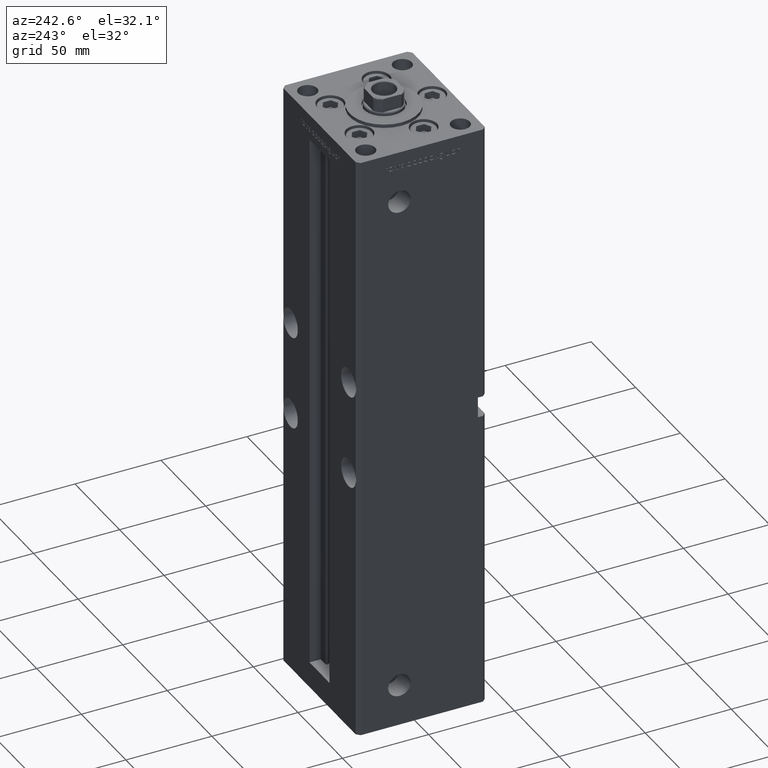
[diagram: clean part render]
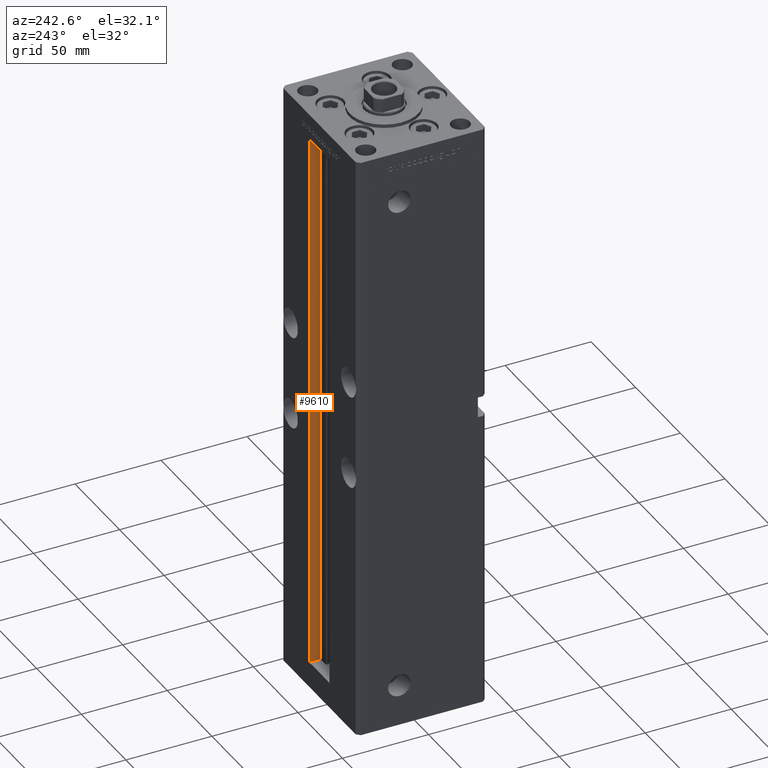
[diagram: same view with one face highlighted and labeled with its STEP entity id]
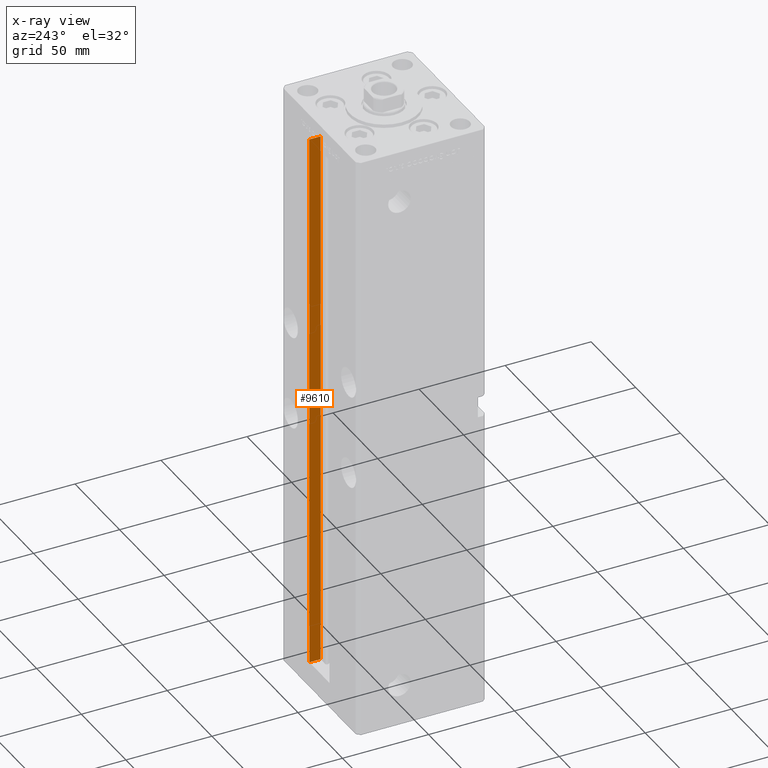
[diagram: x-ray of the same camera — body ghosted, the highlighted face saturated]
A machine part, auxiliary view. The second image highlights one B-rep face of the part: STEP entity #9610.
The next image is the same camera in x-ray: the body ghosted, the highlighted face saturated — about 0% of this face is hidden behind the body in this view.
In plain terms, the highlighted planar face has unit normal (1, 0, 0).
Its self-contained STEP definition (entity closure, byte-faithful):
#4606 = CARTESIAN_POINT ( 'NONE',  ( 11.24999999999999822, 31.00000000000000000, 0.000000000000000000 ) ) ;
#5839 = DIRECTION ( 'NONE',  ( -0.000000000000000000, -1.000000000000000000, 0.000000000000000000 ) ) ;
#9610 = ADVANCED_FACE ( 'NONE', ( #17735 ), #50515, .F. ) ;
#10536 = DIRECTION ( 'NONE',  ( -0.000000000000000000, -0.000000000000000000, 1.000000000000000000 ) ) ;
#11045 = EDGE_CURVE ( 'NONE', #32212, #28484, #15386, .T. ) ;
#14568 = LINE ( 'NONE', #30941, #51292 ) ;
#15386 = LINE ( 'NONE', #16196, #35560 ) ;
#15616 = VECTOR ( 'NONE', #49979, 1000.000000000000000 ) ;
#15828 = CARTESIAN_POINT ( 'NONE',  ( 11.24999999999999112, 37.50000000000000000, 318.5000000000000000 ) ) ;
#16196 = CARTESIAN_POINT ( 'NONE',  ( 11.24999999999999822, 31.00000000000000000, 0.000000000000000000 ) ) ;
#16930 = CARTESIAN_POINT ( 'NONE',  ( 11.24999999999999822, 31.00000000000000000, 0.000000000000000000 ) ) ;
#17735 = FACE_OUTER_BOUND ( 'NONE', #48429, .T. ) ;
#18962 = EDGE_CURVE ( 'NONE', #28484, #37370, #14568, .T. ) ;
#20221 = DIRECTION ( 'NONE',  ( 0.000000000000000000, 1.000000000000000000, 0.000000000000000000 ) ) ;
#26520 = CARTESIAN_POINT ( 'NONE',  ( 11.24999999999999822, 0.000000000000000000, 318.5000000000000000 ) ) ;
#28484 = VERTEX_POINT ( 'NONE', #41344 ) ;
#30941 = CARTESIAN_POINT ( 'NONE',  ( 11.24999999999999822, 37.50000000000000000, 0.000000000000000000 ) ) ;
#31762 = ORIENTED_EDGE ( 'NONE', *, *, #31791, .F. ) ;
#31791 = EDGE_CURVE ( 'NONE', #37370, #42762, #47493, .T. ) ;
#32212 = VERTEX_POINT ( 'NONE', #38023 ) ;
#33318 = DIRECTION ( 'NONE',  ( 0.000000000000000000, 0.000000000000000000, -1.000000000000000000 ) ) ;
#33581 = DIRECTION ( 'NONE',  ( 1.000000000000000000, -0.000000000000000000, 0.000000000000000000 ) ) ;
#35560 = VECTOR ( 'NONE', #20221, 1000.000000000000000 ) ;
#36450 = ORIENTED_EDGE ( 'NONE', *, *, #11045, .F. ) ;
#37370 = VERTEX_POINT ( 'NONE', #15828 ) ;
#38023 = CARTESIAN_POINT ( 'NONE',  ( 11.24999999999999822, 31.00000000000000000, 0.000000000000000000 ) ) ;
#41344 = CARTESIAN_POINT ( 'NONE',  ( 11.24999999999999822, 37.50000000000000000, 0.000000000000000000 ) ) ;
#42762 = VERTEX_POINT ( 'NONE', #43776 ) ;
#43161 = AXIS2_PLACEMENT_3D ( 'NONE', #4606, #33581, #33318 ) ;
#43165 = ORIENTED_EDGE ( 'NONE', *, *, #18962, .F. ) ;
#43776 = CARTESIAN_POINT ( 'NONE',  ( 11.24999999999999822, 31.00000000000000000, 318.5000000000000000 ) ) ;
#46467 = LINE ( 'NONE', #16930, #15616 ) ;
#47493 = LINE ( 'NONE', #26520, #49949 ) ;
#48429 = EDGE_LOOP ( 'NONE', ( #43165, #36450, #50608, #31762 ) ) ;
#49949 = VECTOR ( 'NONE', #5839, 1000.000000000000000 ) ;
#49979 = DIRECTION ( 'NONE',  ( -0.000000000000000000, -0.000000000000000000, 1.000000000000000000 ) ) ;
#50515 = PLANE ( 'NONE',  #43161 ) ;
#50608 = ORIENTED_EDGE ( 'NONE', *, *, #52094, .T. ) ;
#51292 = VECTOR ( 'NONE', #10536, 1000.000000000000000 ) ;
#52094 = EDGE_CURVE ( 'NONE', #32212, #42762, #46467, .T. ) ;